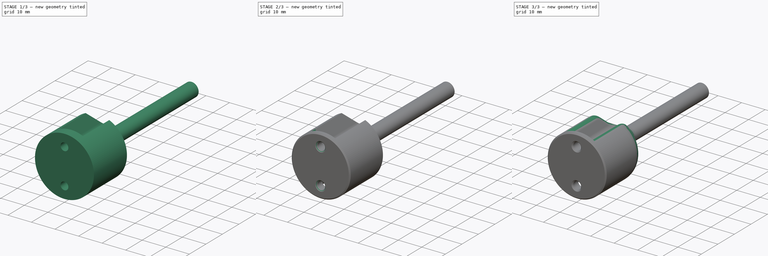
[diagram: build sequence overview — one tinted view per stage of 3, left to right]
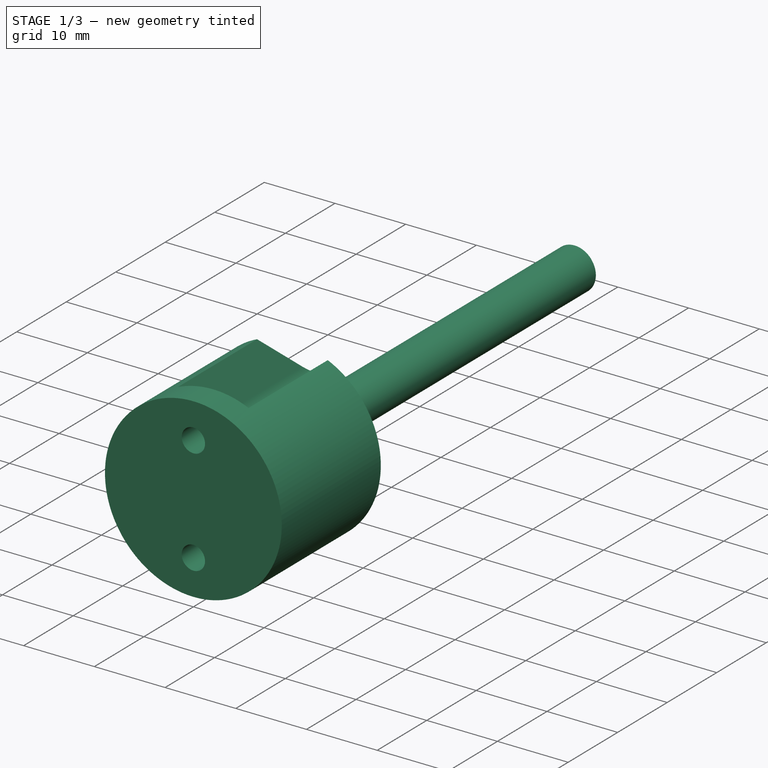
[diagram: stage 1 of 3 — iso view after this stage's code; geometry added in this stage tinted green]
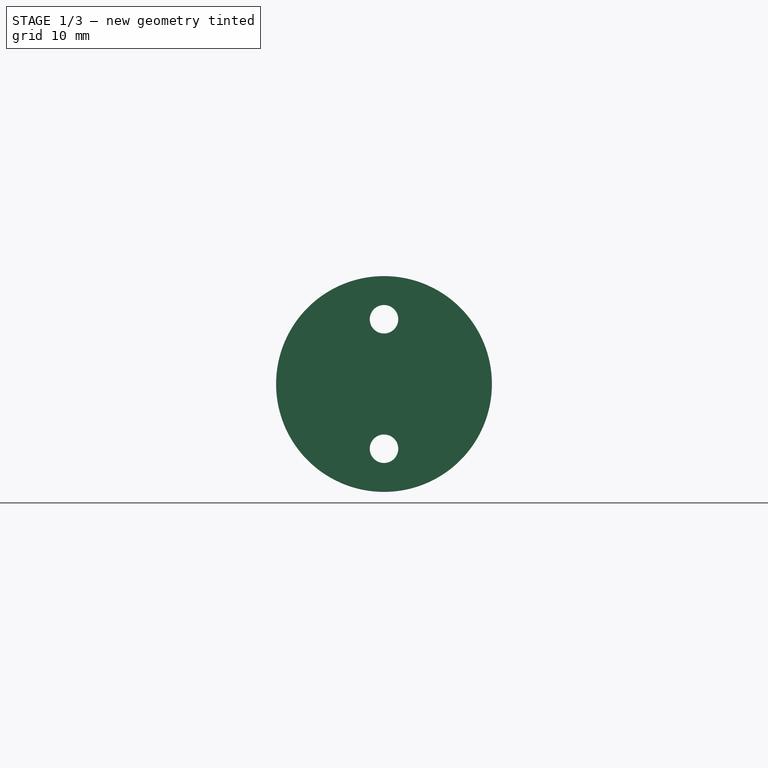
[diagram: stage 1 of 3 — front view after this stage's code; geometry added in this stage tinted green]
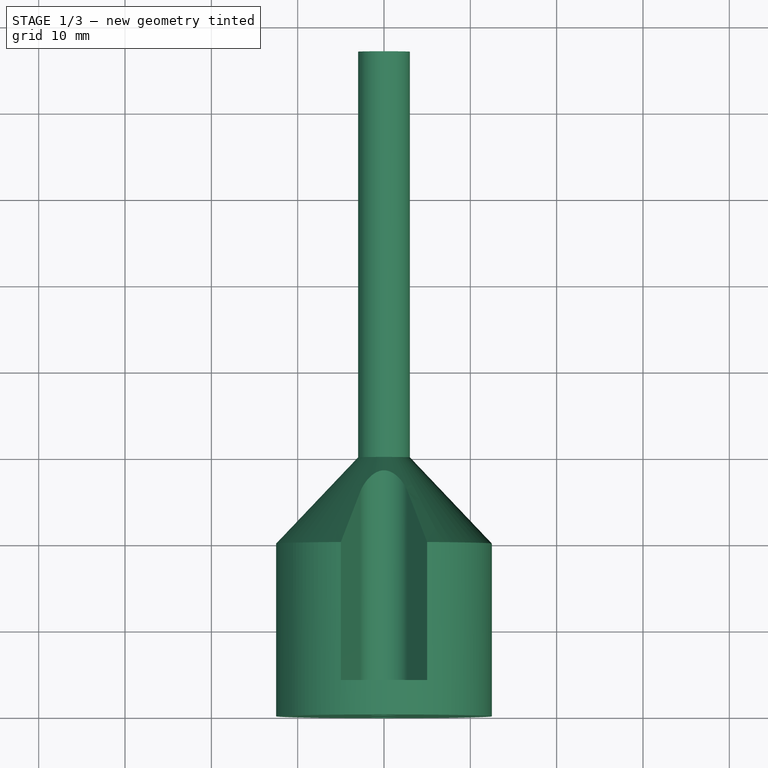
[diagram: stage 1 of 3 — top view after this stage's code; geometry added in this stage tinted green]
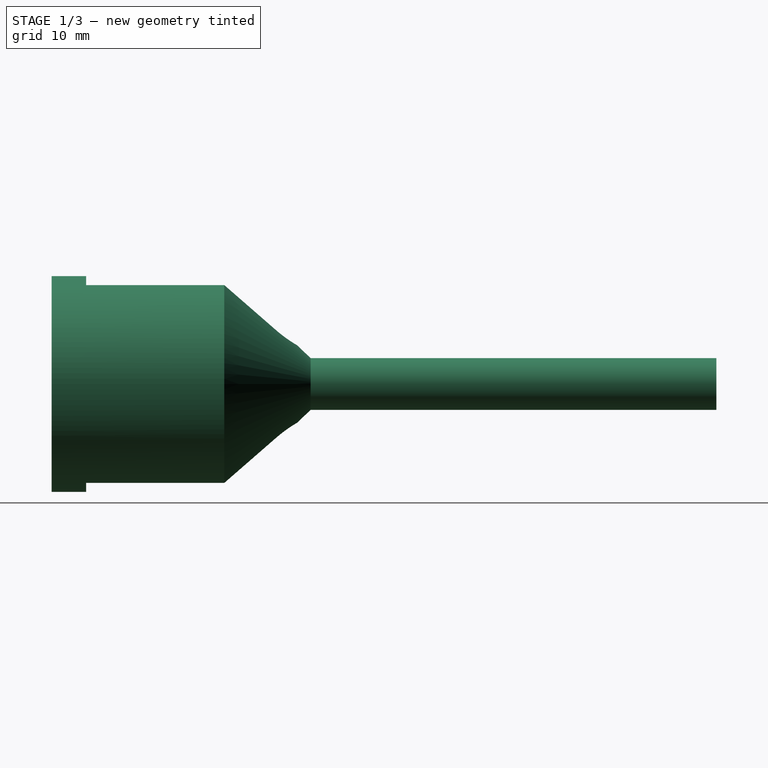
[diagram: stage 1 of 3 — right view after this stage's code; geometry added in this stage tinted green]
FCSTD DOCUMENT  (FreeCAD 0.19R21300 +2313 (Git))
Label: spindle
License: All rights reserved
LicenseURL: http://en.wikipedia.org/wiki/All_rights_reserved
objects: Sketcher::SketchObject×3, PartDesign::Chamfer×3, PartDesign::Pocket×2, PartDesign::Fillet×2, PartDesign::Revolution×1, Part::Plane×1, PartDesign::Body×1
note: 29 computed .brp shape members not serialized (recipe doc carries the construction recipe); baked Part::Feature solids carry a one-line shape summary decoded from their .brp

FEATURE [Sketcher::SketchObject] Sketch
  MapMode = 5
  Support = -> [XY_Plane]
  sketch-geometry (7):
    g0: LineSegment StartX=0 StartY=0 StartZ=0 EndX=12.5 EndY=0 EndZ=0
    g1: LineSegment StartX=12.5 StartY=0 StartZ=0 EndX=12.5 EndY=20 EndZ=0
    g2: LineSegment StartX=12.5 StartY=20 StartZ=0 EndX=3 EndY=30 EndZ=0
    g3: LineSegment StartX=3 StartY=30 StartZ=0 EndX=3 EndY=77 EndZ=0
    g4: LineSegment StartX=3 StartY=77 StartZ=0 EndX=0 EndY=77 EndZ=0
    g5: LineSegment StartX=0 StartY=77 StartZ=0 EndX=0 EndY=0 EndZ=0
    g6: LineSegment [constr] StartX=0 StartY=0 StartZ=0 EndX=-12.5 EndY=1e-16 EndZ=0
  constraints (19):
    c: Coincident(g-1,g0)
    c: PointOnObject(g0,g-1)
    c: Coincident(g0,g1)
    c: Vertical(g1)
    c: Coincident(g1,g2)
    c: Coincident(g2,g3)
    c: Vertical(g3)
    c: Coincident(g3,g4)
    c: Horizontal(g4)
    c: Coincident(g4,g5)
    c: Coincident(g5,g0)
    c: Vertical(g5)
    c: DistanceX(g4,g4) = 3
    c: Coincident(g6,g0)
    c: Symmetric(g6,g0,g-2)
    c: DistanceX(g6,g0) = 25
    c: DistanceY(g1,g2) = 10
    c: DistanceY(g5,g5) = 77
    c: DistanceY(g1,g1) = 20
FEATURE [PartDesign::Revolution] Revolution
  Angle = 360
  Axis = (0,1,0)
  Base = (0,0,0)
  ClaimChildren = false
  Profile = -> Sketch
  ReferenceAxis = -> Sketch [V_Axis]
  Reversed = true
  Suppress = false
FEATURE [Sketcher::SketchObject] Sketch001
  MapMode = 5
  Placement = pos=(0,0,0) rot=(1,0,0;1.5708rad)
  Support = -> [Revolution]
  sketch-geometry (2):
    g0: Circle CenterX=0 CenterY=7.5 CenterZ=0 NormalX=0 NormalY=0 NormalZ=1 AngleXU=0 Radius=1.65
    g1: Circle CenterX=0 CenterY=-7.5 CenterZ=0 NormalX=0 NormalY=0 NormalZ=1 AngleXU=0 Radius=1.65
  constraints (5):
    c: PointOnObject(g0,g-2)
    c: Symmetric(g0,g1,g-1)
    c: Equal(g0,g1)
    c: DistanceY(g1,g0) = 15
    c: Diameter(g0) = 3.3
FEATURE [PartDesign::Pocket] Pocket
  BaseFeature = -> Revolution
  ClaimChildren = false
  Length = 5
  Length2 = 100
  Profile = -> Sketch001
  Suppress = false
  Type = 1
FEATURE [Part::Plane] Plane
  AttacherType = Attacher::AttachEngine3D
  Length = 10
  Placement = pos=(0,4,0) rot=(0.57735,0.57735,0.57735;4.18879rad)
  Width = 10
FEATURE [Sketcher::SketchObject] Sketch002
  ExternalGeometry = -> [Pocket]
  MapMode = 5
  Placement = pos=(0,4,0) rot=(-0.57735,-0.57735,-0.57735;2.0944rad)
  Support = -> [Plane]
  sketch-geometry (8):
    g0: ArcOfCircle CenterX=7.5 CenterY=1.7e-15 CenterZ=0 NormalX=0 NormalY=0 NormalZ=1 AngleXU=0 Radius=3 StartAngle=1.98231 EndAngle=4.30087
    g1: ArcOfCircle CenterX=-7.5 CenterY=-1.7e-15 CenterZ=0 NormalX=0 NormalY=0 NormalZ=1 AngleXU=0 Radius=3 StartAngle=5.12391 EndAngle=7.44246
    g2: LineSegment StartX=6.3 StartY=2.74955 StartZ=0 EndX=11.4564 EndY=5 EndZ=0
    g3: LineSegment StartX=6.3 StartY=-2.74955 StartZ=0 EndX=11.4564 EndY=-5 EndZ=0
    g4: LineSegment StartX=-6.3 StartY=-2.74955 StartZ=0 EndX=-11.4564 EndY=-5 EndZ=0
    g5: LineSegment StartX=-6.3 StartY=2.74955 StartZ=0 EndX=-11.4564 EndY=5 EndZ=0
    g6: ArcOfCircle CenterX=0 CenterY=0 CenterZ=0 NormalX=0 NormalY=0 NormalZ=1 AngleXU=0 Radius=12.5 StartAngle=5.87167 EndAngle=6.6947
    g7: ArcOfCircle CenterX=0 CenterY=0 CenterZ=0 NormalX=0 NormalY=0 NormalZ=1 AngleXU=0 Radius=12.5 StartAngle=2.73008 EndAngle=3.55311
  constraints (20):
    c: Coincident(g0,g-3)
    c: Coincident(g1,g-4)
    c: Equal(g0,g1)
    c: Perpendicular(g-5,g3)
    c: Perpendicular(g-5,g2)
    c: Perpendicular(g-5,g4)
    c: Perpendicular(g-5,g5)
    c: Tangent(g4,g1) = 1.5708
    c: Tangent(g5,g1) = -1.5708
    c: Tangent(g2,g0) = 1.5708
    c: Tangent(g3,g0) = -1.5708
    c: Radius(g0) = 3
    c: Coincident(g6,g-1)
    c: Coincident(g6,g2)
    c: Coincident(g6,g3)
    c: Coincident(g7,g6)
    c: Coincident(g7,g4)
    c: Coincident(g7,g5)
    c: PointOnObject(g5,g-5)
    c: PointOnObject(g2,g-5)
FEATURE [PartDesign::Pocket] Pocket001
  BaseFeature = -> Pocket
  ClaimChildren = false
  Length = 5
  Length2 = 100
  Profile = -> Sketch002
  Reversed = true
  Suppress = false
  Type = 1
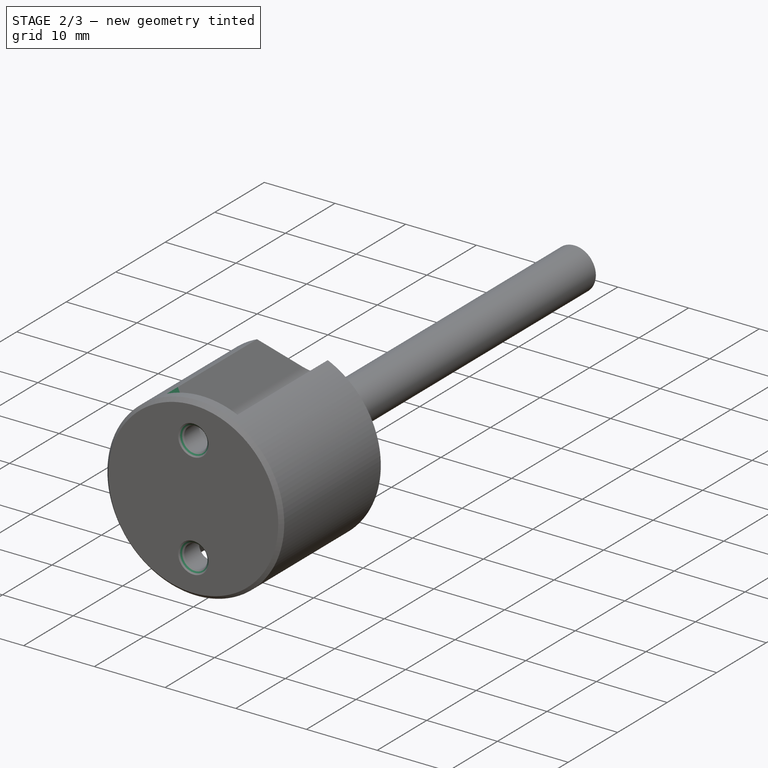
[diagram: stage 2 of 3 — iso view after this stage's code; geometry added in this stage tinted green]
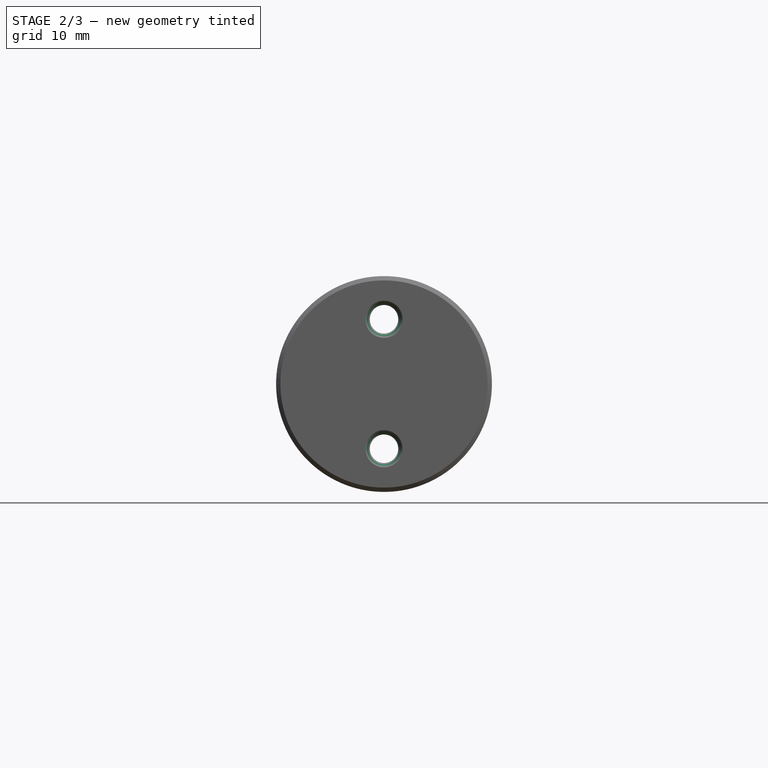
[diagram: stage 2 of 3 — front view after this stage's code; geometry added in this stage tinted green]
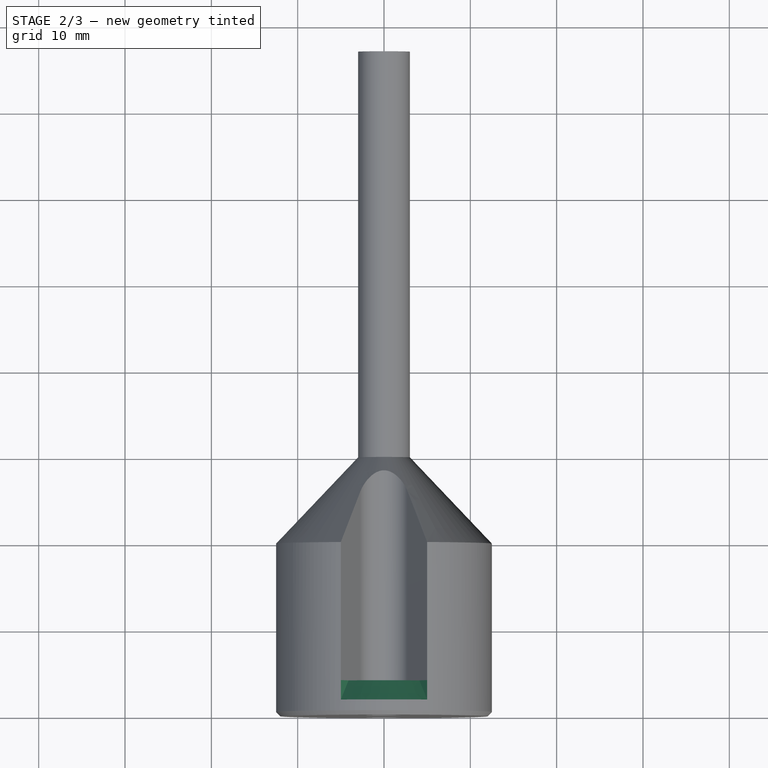
[diagram: stage 2 of 3 — top view after this stage's code; geometry added in this stage tinted green]
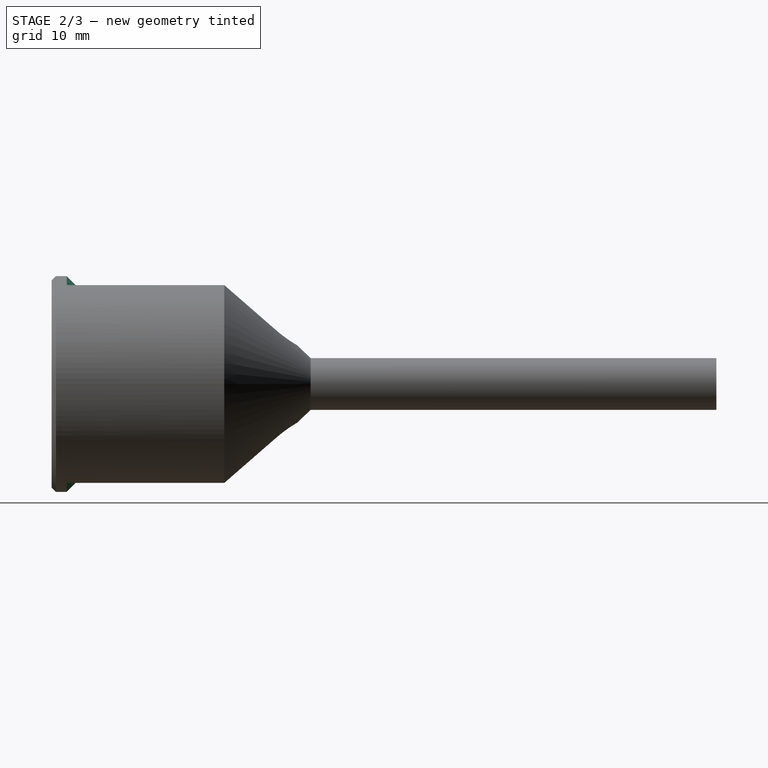
[diagram: stage 2 of 3 — right view after this stage's code; geometry added in this stage tinted green]
FEATURE [PartDesign::Chamfer] Chamfer
  Angle = 45
  Base = -> Pocket001 [Face1,Edge15,Edge17]
  BaseFeature = -> Pocket001
  ChamferType = 0
  FlipDirection = false
  Size = 0.5
  Size2 = 1
  SupportTransform = true
  Suppress = false
FEATURE [PartDesign::Chamfer] Chamfer001
  Angle = 45
  Base = -> Chamfer [Edge14,Edge17]
  BaseFeature = -> Chamfer
  ChamferType = 0
  FlipDirection = false
  Size = 2.25
  Size2 = 1
  SupportTransform = true
  Suppress = false
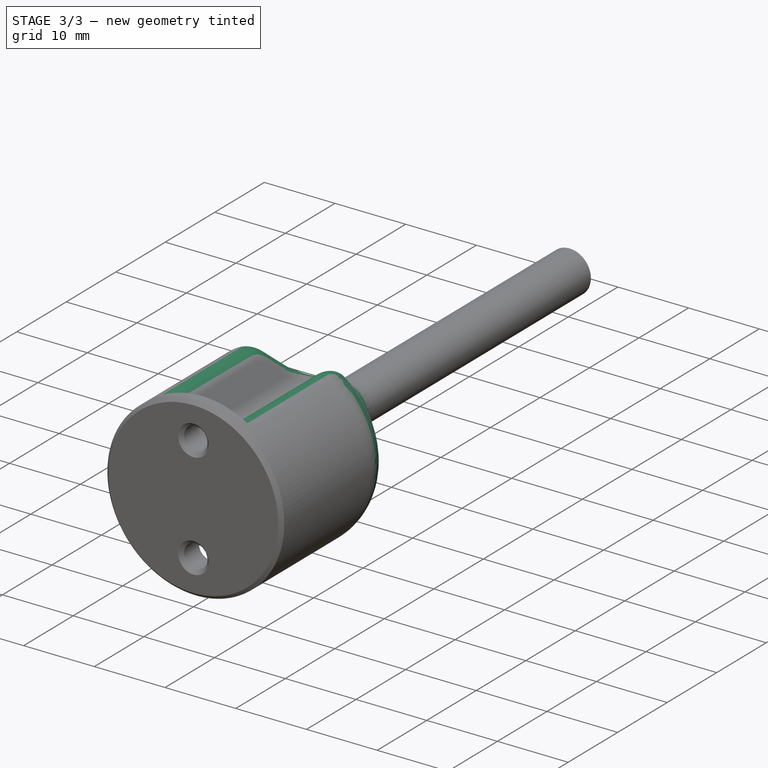
[diagram: stage 3 of 3 — iso view after this stage's code; geometry added in this stage tinted green]
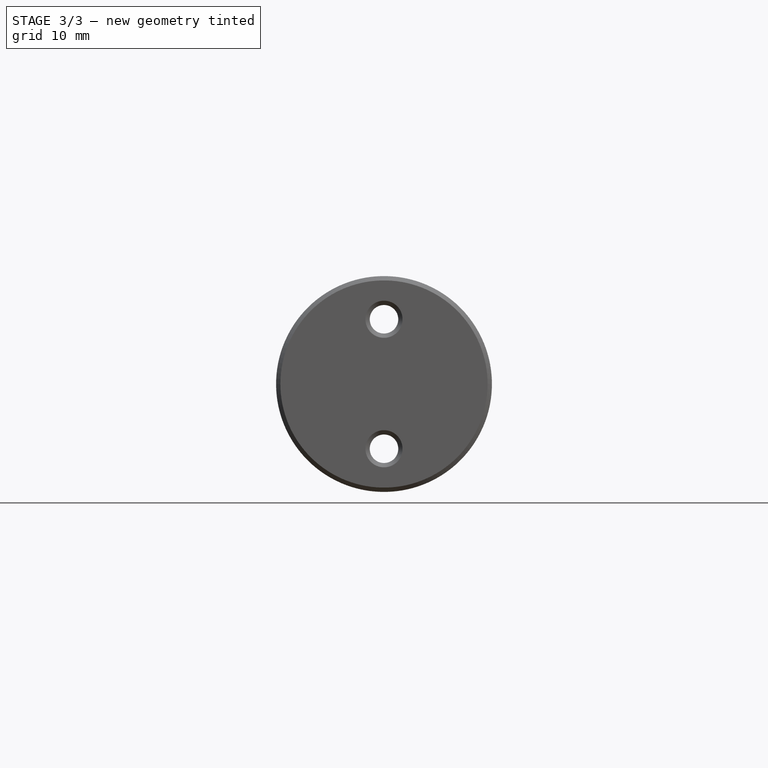
[diagram: stage 3 of 3 — front view after this stage's code; geometry added in this stage tinted green]
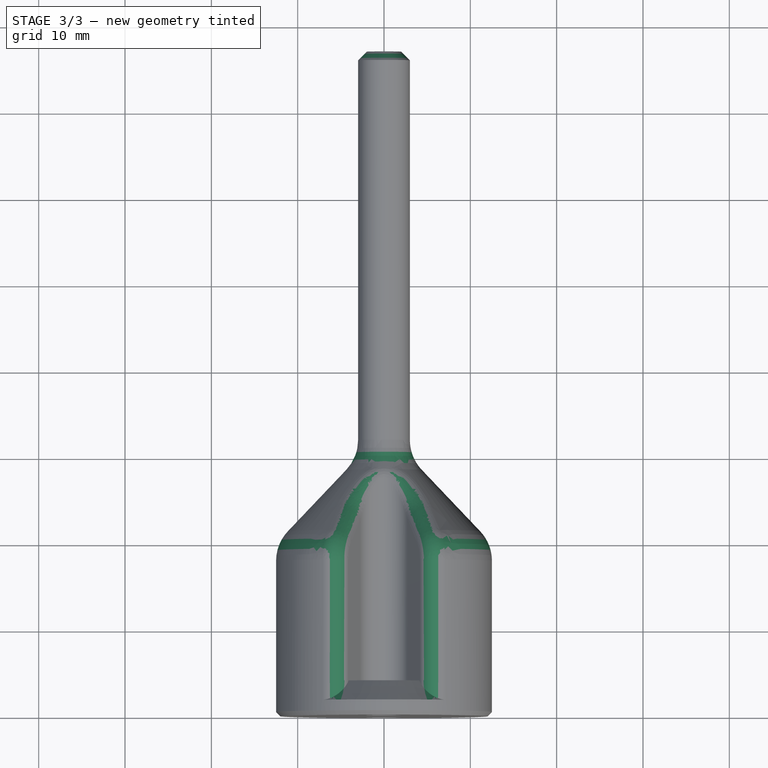
[diagram: stage 3 of 3 — top view after this stage's code; geometry added in this stage tinted green]
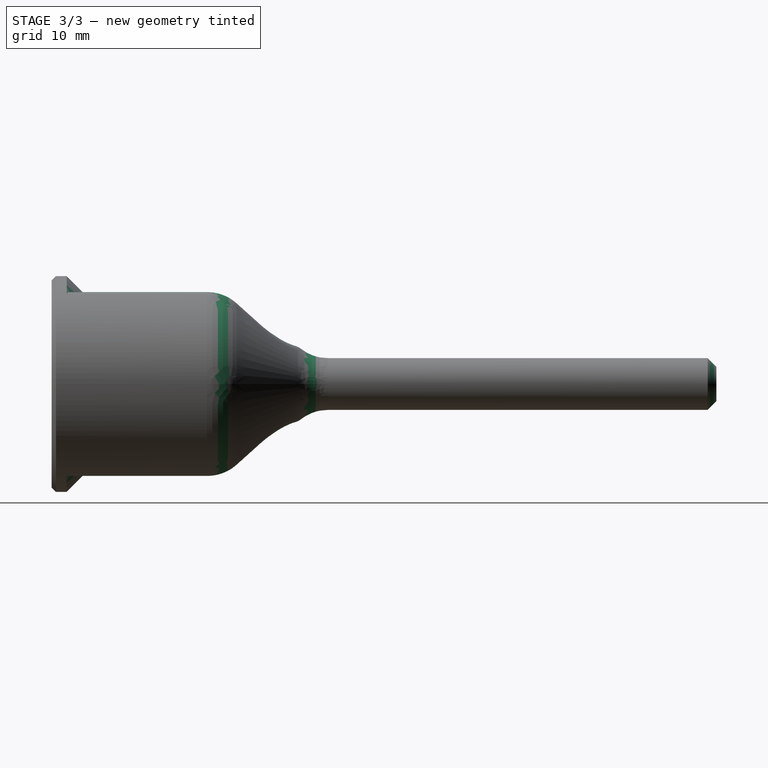
[diagram: stage 3 of 3 — right view after this stage's code; geometry added in this stage tinted green]
FEATURE [PartDesign::Fillet] Fillet
  Base = -> Chamfer001 [Edge15,Edge4,Edge9,Edge29]
  BaseFeature = -> Chamfer001
  Radius = 5
  SupportTransform = true
  Suppress = false
FEATURE [PartDesign::Fillet] Fillet001
  Base = -> Fillet [Edge48,Edge44,Edge46]
  BaseFeature = -> Fillet
  Radius = 2
  SupportTransform = true
  Suppress = false
FEATURE [PartDesign::Chamfer] Chamfer002
  Angle = 45
  Base = -> Fillet001 [Face50]
  BaseFeature = -> Fillet001
  ChamferType = 0
  FlipDirection = false
  Size = 1
  Size2 = 1
  SupportTransform = true
  Suppress = false
FEATURE [PartDesign::Body] Body
  ExportMode = 0
  Group = -> [Sketch,Revolution,Sketch001,Pocket,Sketch002,Pocket001,Chamfer,Chamfer001,Fillet,Fillet001,Chamfer002]
  Origin = -> Origin
  SingleSolid = true
  Tip = -> Chamfer002
  _ExportChildren = -> [Revolution,Pocket,Pocket001,Chamfer,Chamfer001,Fillet,Fillet001,Chamfer002]
  _GroupVersion = 1
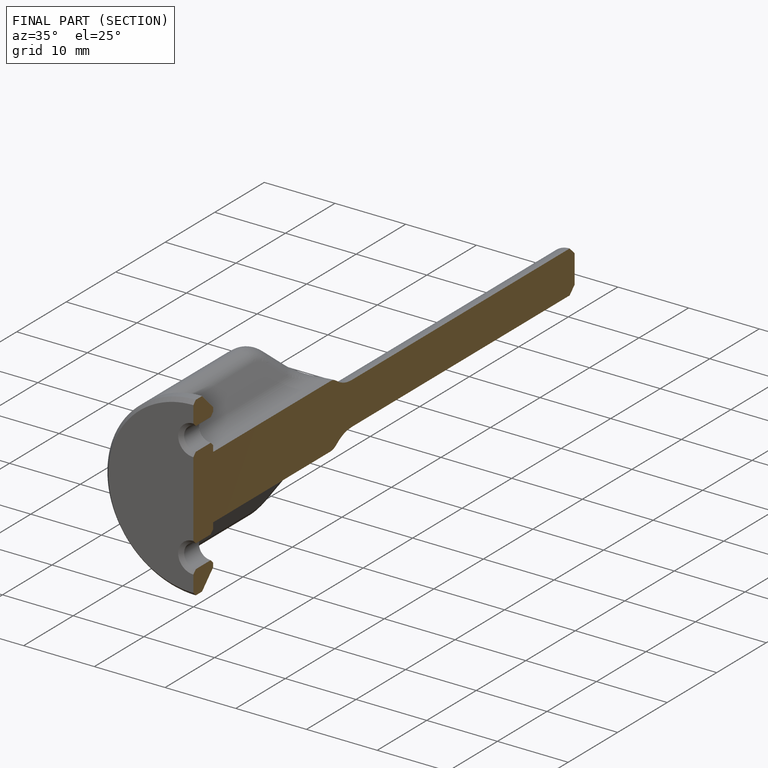
[diagram: finished part — half-section view (interior)]
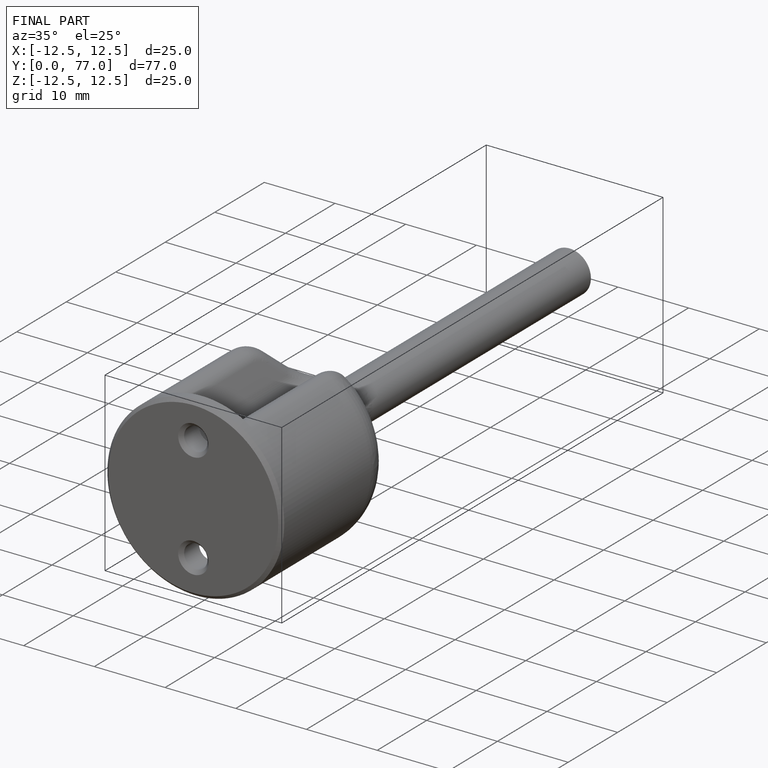
[diagram: finished part — iso view with bounding-box wireframe]
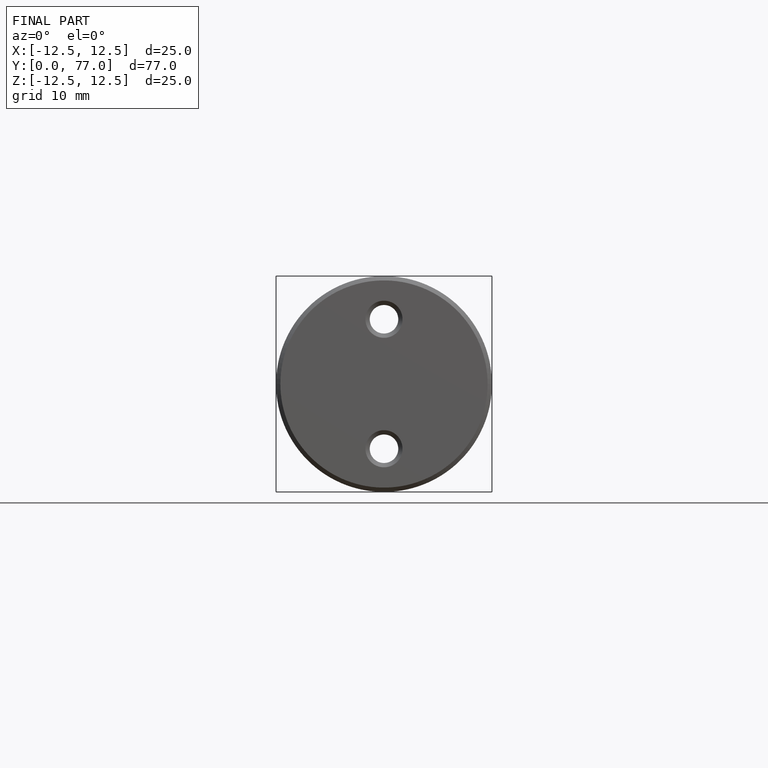
[diagram: finished part — front view with bounding-box wireframe]
